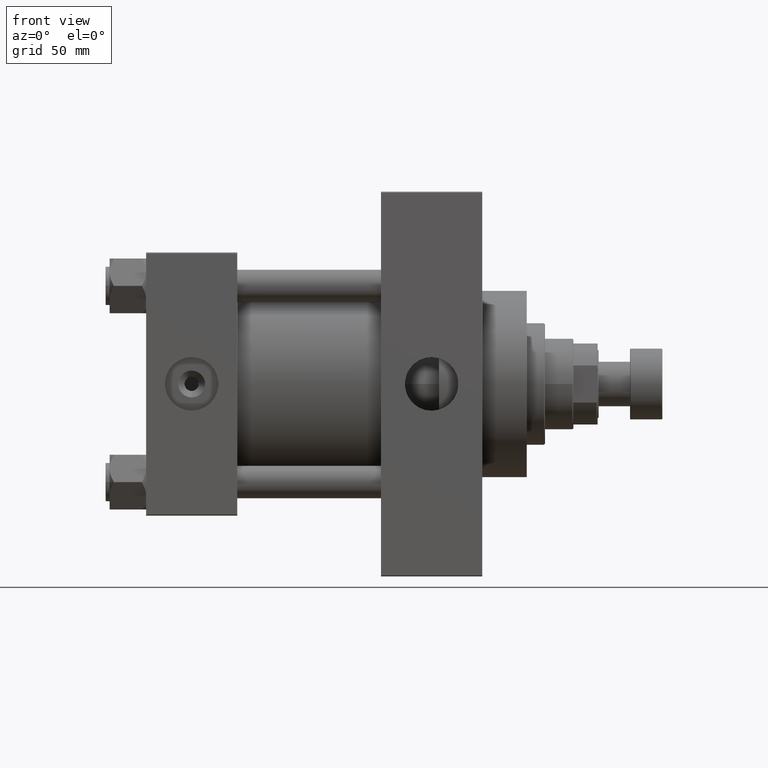
[diagram: clean part render]
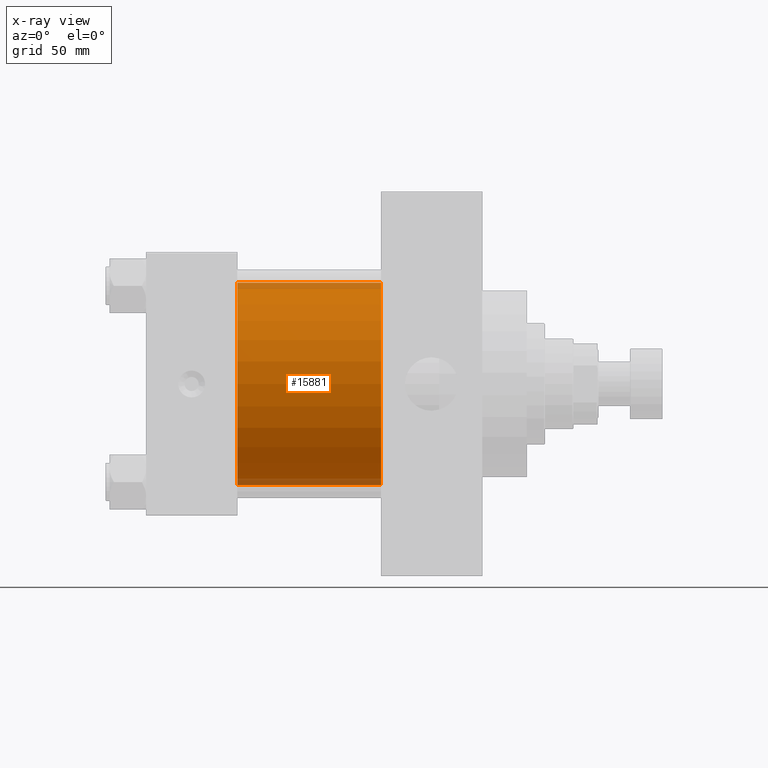
[diagram: x-ray — body ghosted, one internal face saturated and labeled with its STEP entity id]
A machine part, front view, then the same camera in x-ray: the body is ghosted and one INTERNAL B-rep face — a face not visible from any outside direction — is saturated and labeled: STEP entity #15881.
In plain terms, the highlighted cylindrical surface (partial cylindrical patch) has radius 50 mm, axis along (-1, -0, -0).
Its self-contained STEP definition (entity closure, byte-faithful):
#1049 = VERTEX_POINT ( 'NONE', #34857 ) ;
#4330 = CARTESIAN_POINT ( 'NONE',  ( 45.00000000000000000, -2.602085213965210642E-15, 0.000000000000000000 ) ) ;
#4373 = AXIS2_PLACEMENT_3D ( 'NONE', #4330, #38124, #42169 ) ;
#7638 = ORIENTED_EDGE ( 'NONE', *, *, #35527, .T. ) ;
#8738 = LINE ( 'NONE', #12544, #41335 ) ;
#10528 = CARTESIAN_POINT ( 'NONE',  ( 115.9999999999999858, 3.521148781771555838E-15, -50.00000000000000000 ) ) ;
#11811 = ORIENTED_EDGE ( 'NONE', *, *, #12421, .F. ) ;
#12043 = VERTEX_POINT ( 'NONE', #29379 ) ;
#12421 = EDGE_CURVE ( 'NONE', #12043, #29766, #18948, .T. ) ;
#12544 = CARTESIAN_POINT ( 'NONE',  ( 115.9999999999999858, -2.602085213965210642E-15, 50.00000000000000000 ) ) ;
#12702 = DIRECTION ( 'NONE',  ( -1.000000000000000000, -0.000000000000000000, -0.000000000000000000 ) ) ;
#12850 = CARTESIAN_POINT ( 'NONE',  ( 115.9999999999999858, 3.521148781771555838E-15, -50.00000000000000000 ) ) ;
#15881 = ADVANCED_FACE ( 'NONE', ( #47481 ), #23872, .F. ) ;
#16009 = CARTESIAN_POINT ( 'NONE',  ( 115.9999999999999858, -2.602085213965210642E-15, 0.000000000000000000 ) ) ;
#16560 = DIRECTION ( 'NONE',  ( 0.000000000000000000, 0.000000000000000000, -1.000000000000000000 ) ) ;
#16671 = AXIS2_PLACEMENT_3D ( 'NONE', #16009, #12702, #28191 ) ;
#17727 = ORIENTED_EDGE ( 'NONE', *, *, #46550, .T. ) ;
#18422 = EDGE_LOOP ( 'NONE', ( #7638, #17727, #11811, #48773 ) ) ;
#18948 = CIRCLE ( 'NONE', #4373, 50.00000000000000000 ) ;
#21901 = AXIS2_PLACEMENT_3D ( 'NONE', #28488, #43976, #16560 ) ;
#23872 = CYLINDRICAL_SURFACE ( 'NONE', #16671, 50.00000000000000000 ) ;
#24521 = DIRECTION ( 'NONE',  ( -1.000000000000000000, -0.000000000000000000, -0.000000000000000000 ) ) ;
#25109 = CIRCLE ( 'NONE', #21901, 50.00000000000000000 ) ;
#26292 = CARTESIAN_POINT ( 'NONE',  ( 45.00000000000000000, 3.521148781771555838E-15, -50.00000000000000000 ) ) ;
#27983 = EDGE_CURVE ( 'NONE', #1049, #12043, #8738, .T. ) ;
#28191 = DIRECTION ( 'NONE',  ( 0.000000000000000000, 0.000000000000000000, 1.000000000000000000 ) ) ;
#28488 = CARTESIAN_POINT ( 'NONE',  ( 115.9999999999999858, -2.602085213965210642E-15, 0.000000000000000000 ) ) ;
#29379 = CARTESIAN_POINT ( 'NONE',  ( 45.00000000000000000, -2.602085213965210642E-15, 50.00000000000000000 ) ) ;
#29766 = VERTEX_POINT ( 'NONE', #26292 ) ;
#31575 = DIRECTION ( 'NONE',  ( -1.000000000000000000, -0.000000000000000000, -0.000000000000000000 ) ) ;
#34857 = CARTESIAN_POINT ( 'NONE',  ( 115.9999999999999858, -2.602085213965210642E-15, 50.00000000000000000 ) ) ;
#35527 = EDGE_CURVE ( 'NONE', #1049, #37205, #25109, .T. ) ;
#37205 = VERTEX_POINT ( 'NONE', #10528 ) ;
#38124 = DIRECTION ( 'NONE',  ( 1.000000000000000000, 0.000000000000000000, 0.000000000000000000 ) ) ;
#41335 = VECTOR ( 'NONE', #31575, 1000.000000000000000 ) ;
#42169 = DIRECTION ( 'NONE',  ( 0.000000000000000000, 0.000000000000000000, -1.000000000000000000 ) ) ;
#43234 = VECTOR ( 'NONE', #24521, 1000.000000000000000 ) ;
#43976 = DIRECTION ( 'NONE',  ( 1.000000000000000000, 0.000000000000000000, 0.000000000000000000 ) ) ;
#44576 = LINE ( 'NONE', #12850, #43234 ) ;
#46550 = EDGE_CURVE ( 'NONE', #37205, #29766, #44576, .T. ) ;
#47481 = FACE_OUTER_BOUND ( 'NONE', #18422, .T. ) ;
#48773 = ORIENTED_EDGE ( 'NONE', *, *, #27983, .F. ) ;